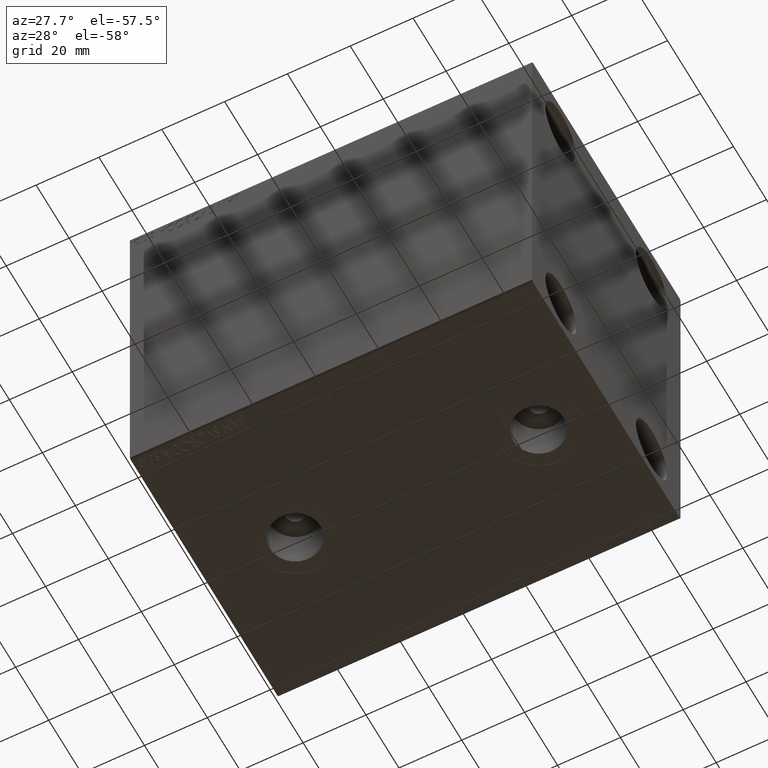
[diagram: clean part render]
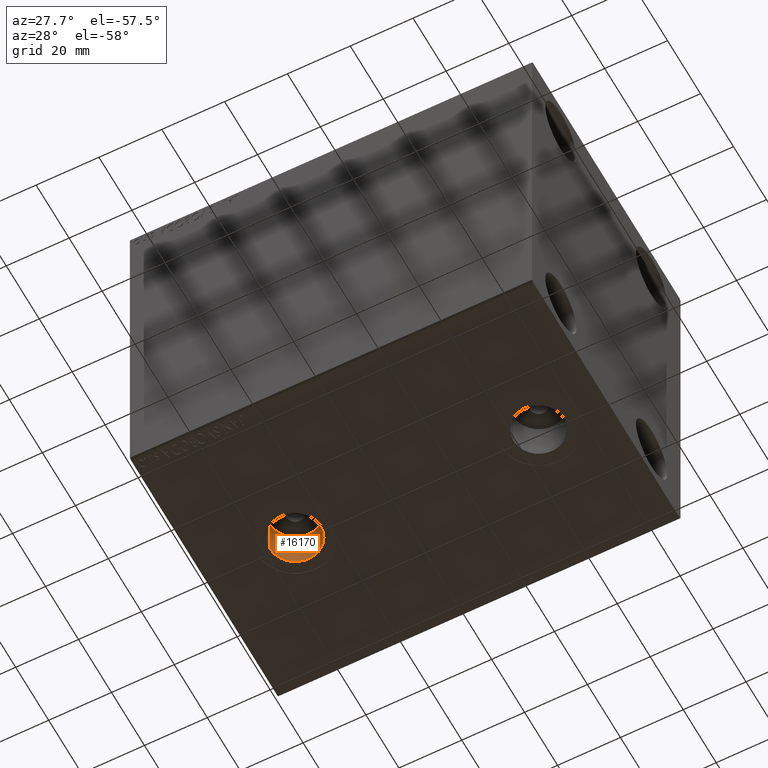
[diagram: same view with one face highlighted and labeled with its STEP entity id]
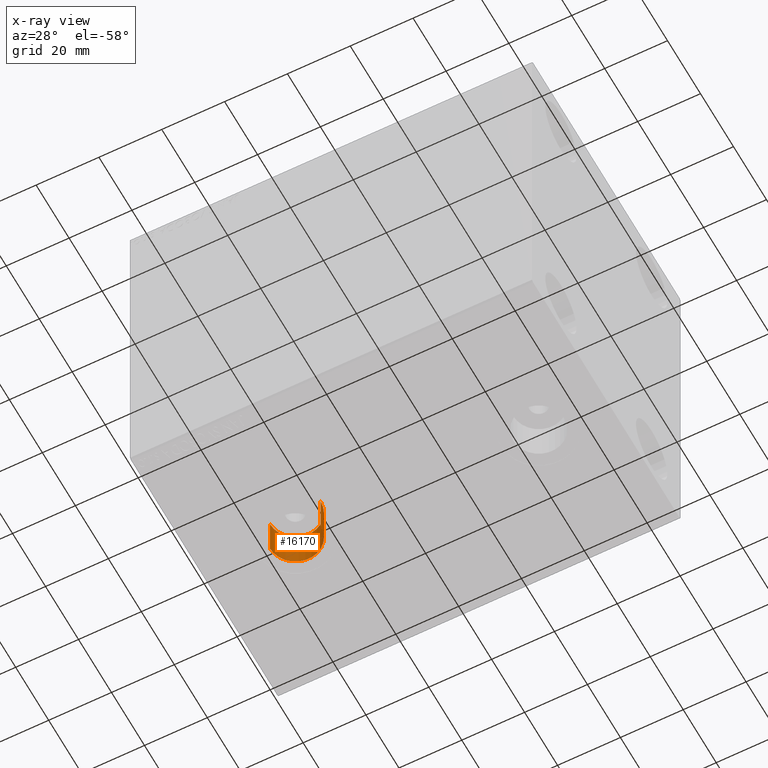
[diagram: x-ray of the same camera — body ghosted, the highlighted face saturated]
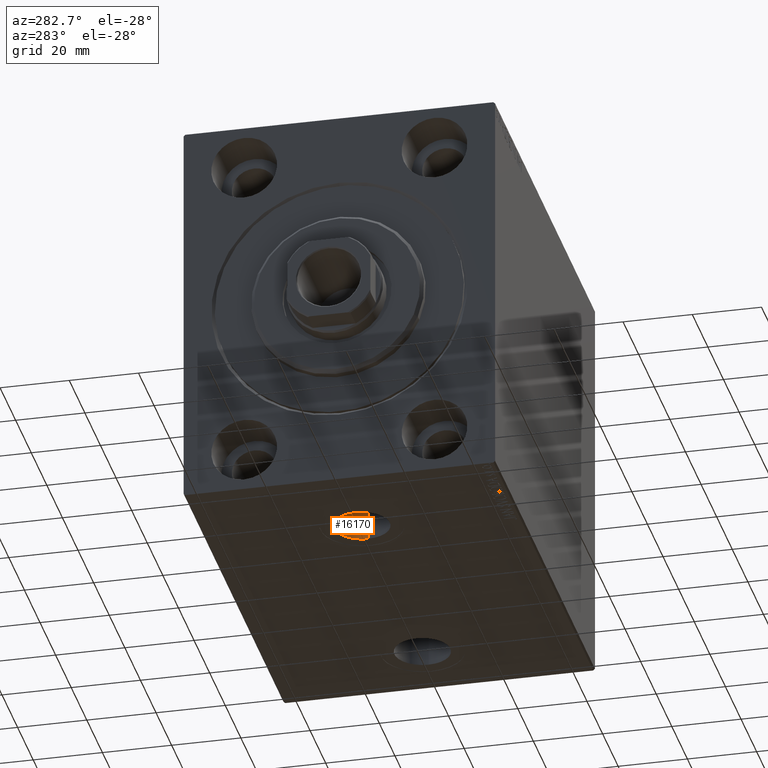
[diagram: same view with one face highlighted and labeled with its STEP entity id]
A machine part, auxiliary view. The second image highlights one B-rep face of the part: STEP entity #16170.
The next image is the same camera in x-ray: the body ghosted, the highlighted face saturated — about 0% of this face is hidden behind the body in this view.
A second angle (auxiliary view) of the same face is appended — the face is thin or edge-on in the first view.
In plain terms, the highlighted cylindrical surface (edge-blend (fillet) strip) has radius 8.085 mm, axis along (-0, -0, -1).
Its self-contained STEP definition (entity closure, byte-faithful):
#2183 = EDGE_CURVE ( 'NONE', #21086, #3816, #11853, .T. ) ;
#2714 = CIRCLE ( 'NONE', #28318, 8.084999999999999076 ) ;
#2801 = CARTESIAN_POINT ( 'NONE',  ( 37.08500000000000085, -5.206306226251895314E-15, -57.40000000000000568 ) ) ;
#2975 = EDGE_CURVE ( 'NONE', #7044, #9501, #27685, .T. ) ;
#3816 = VERTEX_POINT ( 'NONE', #2801 ) ;
#4530 = AXIS2_PLACEMENT_3D ( 'NONE', #18121, #14015, #42884 ) ;
#5701 = CARTESIAN_POINT ( 'NONE',  ( 29.00000000000000000, -6.196433163362529681E-15, -44.50000000000000711 ) ) ;
#6369 = EDGE_CURVE ( 'NONE', #9501, #3816, #10385, .T. ) ;
#7044 = VERTEX_POINT ( 'NONE', #14024 ) ;
#9501 = VERTEX_POINT ( 'NONE', #30848 ) ;
#9612 = EDGE_LOOP ( 'NONE', ( #26184, #28146, #34947, #22216 ) ) ;
#10385 = CIRCLE ( 'NONE', #4530, 8.084999999999999076 ) ;
#10743 = CYLINDRICAL_SURFACE ( 'NONE', #37031, 8.084999999999999076 ) ;
#11185 = CARTESIAN_POINT ( 'NONE',  ( 37.08500000000000085, -5.206306226251895314E-15, -44.50000000000000711 ) ) ;
#11853 = LINE ( 'NONE', #11185, #26481 ) ;
#11896 = DIRECTION ( 'NONE',  ( -1.000000000000000000, 0.000000000000000000, 0.000000000000000000 ) ) ;
#12864 = CARTESIAN_POINT ( 'NONE',  ( 37.08500000000000085, -5.206306226251895314E-15, -44.50000000000000711 ) ) ;
#14015 = DIRECTION ( 'NONE',  ( 0.000000000000000000, 0.000000000000000000, -1.000000000000000000 ) ) ;
#14024 = CARTESIAN_POINT ( 'NONE',  ( 20.91500000000000270, -6.196433163362529681E-15, -44.50000000000000711 ) ) ;
#16170 = ADVANCED_FACE ( 'NONE', ( #42140 ), #10743, .F. ) ;
#16453 = DIRECTION ( 'NONE',  ( -0.000000000000000000, -0.000000000000000000, -1.000000000000000000 ) ) ;
#18121 = CARTESIAN_POINT ( 'NONE',  ( 29.00000000000000000, -6.196433163362529681E-15, -57.40000000000000568 ) ) ;
#18717 = EDGE_CURVE ( 'NONE', #7044, #21086, #2714, .T. ) ;
#21086 = VERTEX_POINT ( 'NONE', #12864 ) ;
#22216 = ORIENTED_EDGE ( 'NONE', *, *, #6369, .T. ) ;
#22396 = CARTESIAN_POINT ( 'NONE',  ( 29.00000000000000000, -6.196433163362529681E-15, -44.50000000000000711 ) ) ;
#25384 = DIRECTION ( 'NONE',  ( -0.000000000000000000, -0.000000000000000000, -1.000000000000000000 ) ) ;
#26184 = ORIENTED_EDGE ( 'NONE', *, *, #2183, .F. ) ;
#26481 = VECTOR ( 'NONE', #25384, 1000.000000000000000 ) ;
#27685 = LINE ( 'NONE', #41662, #42581 ) ;
#28146 = ORIENTED_EDGE ( 'NONE', *, *, #18717, .F. ) ;
#28318 = AXIS2_PLACEMENT_3D ( 'NONE', #5701, #43521, #11896 ) ;
#30848 = CARTESIAN_POINT ( 'NONE',  ( 20.91500000000000270, -6.196433163362529681E-15, -57.40000000000000568 ) ) ;
#32734 = DIRECTION ( 'NONE',  ( -0.000000000000000000, -0.000000000000000000, -1.000000000000000000 ) ) ;
#34947 = ORIENTED_EDGE ( 'NONE', *, *, #2975, .T. ) ;
#37031 = AXIS2_PLACEMENT_3D ( 'NONE', #22396, #32734, #40051 ) ;
#40051 = DIRECTION ( 'NONE',  ( -1.000000000000000000, 0.000000000000000000, 0.000000000000000000 ) ) ;
#41662 = CARTESIAN_POINT ( 'NONE',  ( 20.91500000000000270, -6.196433163362529681E-15, -44.50000000000000711 ) ) ;
#42140 = FACE_OUTER_BOUND ( 'NONE', #9612, .T. ) ;
#42581 = VECTOR ( 'NONE', #16453, 1000.000000000000000 ) ;
#42884 = DIRECTION ( 'NONE',  ( -1.000000000000000000, 0.000000000000000000, 0.000000000000000000 ) ) ;
#43521 = DIRECTION ( 'NONE',  ( 0.000000000000000000, 0.000000000000000000, -1.000000000000000000 ) ) ;